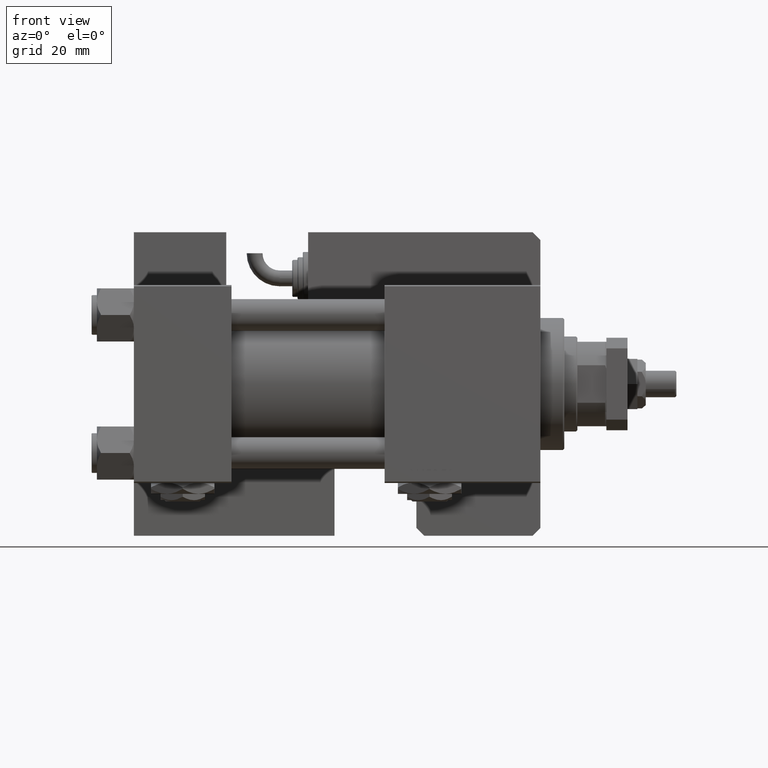
[diagram: clean part render]
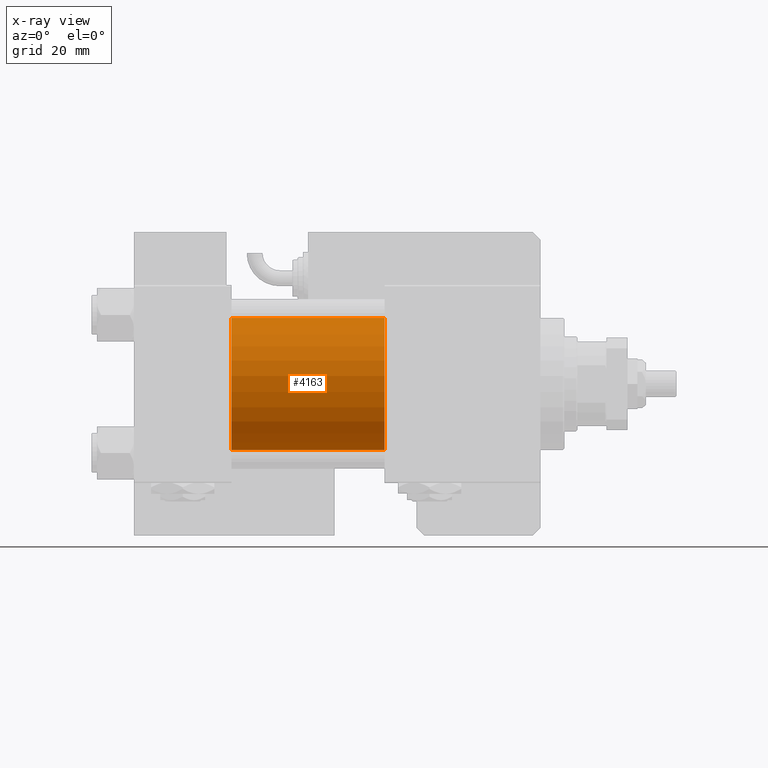
[diagram: x-ray — body ghosted, one internal face saturated and labeled with its STEP entity id]
A machine part, front view, then the same camera in x-ray: the body is ghosted and one INTERNAL B-rep face — a face not visible from any outside direction — is saturated and labeled: STEP entity #4163.
In plain terms, the highlighted cylindrical surface (partial cylindrical patch) has radius 25 mm, axis along (-1, -0, -0).
Its self-contained STEP definition (entity closure, byte-faithful):
#1214 = DIRECTION ( 'NONE',  ( 1.000000000000000000, 0.000000000000000000, 0.000000000000000000 ) ) ;
#1264 = CARTESIAN_POINT ( 'NONE',  ( 37.00000000000000000, 4.595317839031718093E-16, -25.00000000000000000 ) ) ;
#2525 = LINE ( 'NONE', #20370, #50480 ) ;
#4163 = ADVANCED_FACE ( 'NONE', ( #24486 ), #47075, .F. ) ;
#6618 = ORIENTED_EDGE ( 'NONE', *, *, #52493, .F. ) ;
#6864 = DIRECTION ( 'NONE',  ( 1.000000000000000000, 0.000000000000000000, 0.000000000000000000 ) ) ;
#10834 = VERTEX_POINT ( 'NONE', #22112 ) ;
#13030 = CARTESIAN_POINT ( 'NONE',  ( 37.00000000000000000, -2.602085213965210642E-15, 25.00000000000000000 ) ) ;
#15407 = CARTESIAN_POINT ( 'NONE',  ( 95.00000000000000000, -2.602085213965210642E-15, 0.000000000000000000 ) ) ;
#17067 = AXIS2_PLACEMENT_3D ( 'NONE', #20052, #6864, #29139 ) ;
#19942 = EDGE_LOOP ( 'NONE', ( #29492, #44005, #30641, #6618 ) ) ;
#20052 = CARTESIAN_POINT ( 'NONE',  ( 95.00000000000000000, -2.602085213965210642E-15, 0.000000000000000000 ) ) ;
#20370 = CARTESIAN_POINT ( 'NONE',  ( 95.00000000000000000, 4.595317839031718093E-16, -25.00000000000000000 ) ) ;
#22112 = CARTESIAN_POINT ( 'NONE',  ( 95.00000000000000000, -2.602085213965210642E-15, 25.00000000000000000 ) ) ;
#24486 = FACE_OUTER_BOUND ( 'NONE', #19942, .T. ) ;
#29139 = DIRECTION ( 'NONE',  ( 0.000000000000000000, 0.000000000000000000, -1.000000000000000000 ) ) ;
#29492 = ORIENTED_EDGE ( 'NONE', *, *, #42665, .T. ) ;
#30641 = ORIENTED_EDGE ( 'NONE', *, *, #52301, .F. ) ;
#32530 = AXIS2_PLACEMENT_3D ( 'NONE', #15407, #33285, #51468 ) ;
#32815 = EDGE_CURVE ( 'NONE', #35518, #44062, #2525, .T. ) ;
#33285 = DIRECTION ( 'NONE',  ( -1.000000000000000000, -0.000000000000000000, -0.000000000000000000 ) ) ;
#35518 = VERTEX_POINT ( 'NONE', #49095 ) ;
#37133 = AXIS2_PLACEMENT_3D ( 'NONE', #55423, #1214, #42211 ) ;
#42211 = DIRECTION ( 'NONE',  ( 0.000000000000000000, 0.000000000000000000, -1.000000000000000000 ) ) ;
#42665 = EDGE_CURVE ( 'NONE', #10834, #35518, #57333, .T. ) ;
#43704 = VECTOR ( 'NONE', #48914, 1000.000000000000000 ) ;
#44005 = ORIENTED_EDGE ( 'NONE', *, *, #32815, .T. ) ;
#44062 = VERTEX_POINT ( 'NONE', #1264 ) ;
#45388 = LINE ( 'NONE', #49501, #43704 ) ;
#45607 = CIRCLE ( 'NONE', #37133, 25.00000000000000000 ) ;
#46919 = VERTEX_POINT ( 'NONE', #13030 ) ;
#47075 = CYLINDRICAL_SURFACE ( 'NONE', #32530, 25.00000000000000000 ) ;
#47351 = DIRECTION ( 'NONE',  ( -1.000000000000000000, -0.000000000000000000, -0.000000000000000000 ) ) ;
#48914 = DIRECTION ( 'NONE',  ( -1.000000000000000000, -0.000000000000000000, -0.000000000000000000 ) ) ;
#49095 = CARTESIAN_POINT ( 'NONE',  ( 95.00000000000000000, 4.595317839031718093E-16, -25.00000000000000000 ) ) ;
#49501 = CARTESIAN_POINT ( 'NONE',  ( 95.00000000000000000, -2.602085213965210642E-15, 25.00000000000000000 ) ) ;
#50480 = VECTOR ( 'NONE', #47351, 1000.000000000000000 ) ;
#51468 = DIRECTION ( 'NONE',  ( 0.000000000000000000, 0.000000000000000000, 1.000000000000000000 ) ) ;
#52301 = EDGE_CURVE ( 'NONE', #46919, #44062, #45607, .T. ) ;
#52493 = EDGE_CURVE ( 'NONE', #10834, #46919, #45388, .T. ) ;
#55423 = CARTESIAN_POINT ( 'NONE',  ( 37.00000000000000000, -2.602085213965210642E-15, 0.000000000000000000 ) ) ;
#57333 = CIRCLE ( 'NONE', #17067, 25.00000000000000000 ) ;